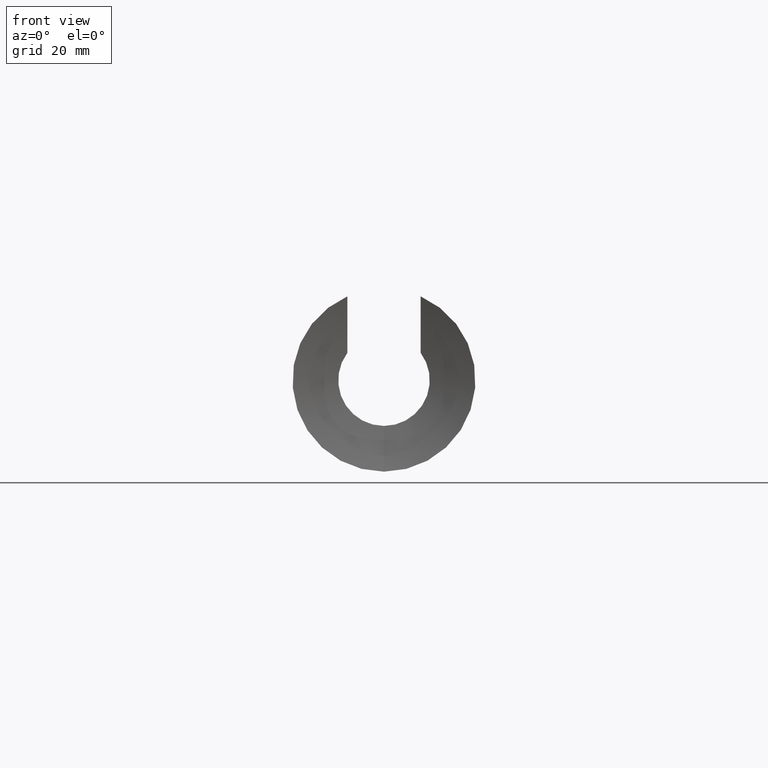
[diagram: clean part render]
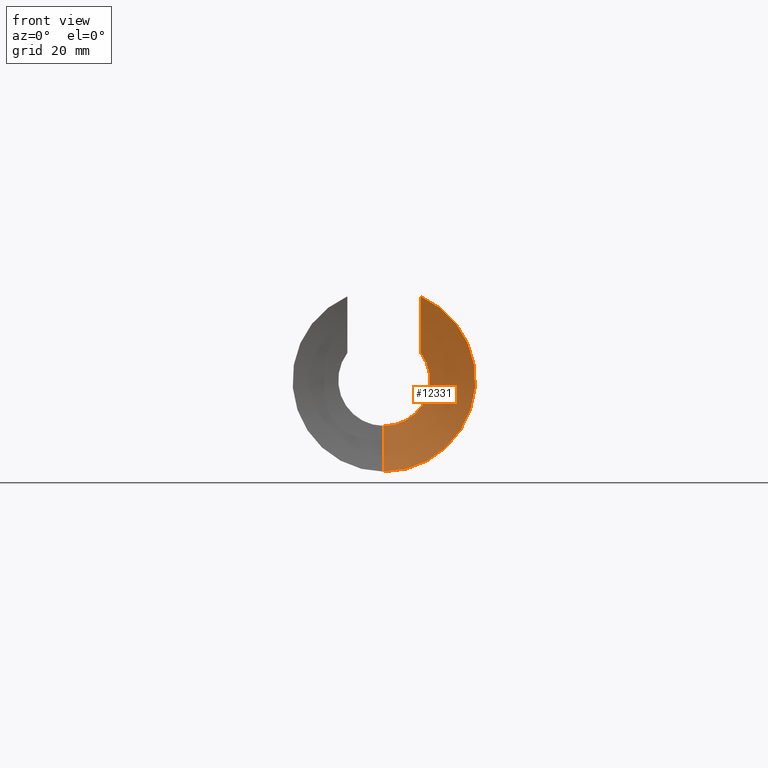
[diagram: same view with one face highlighted and labeled with its STEP entity id]
A machine part, front view. The second image highlights one B-rep face of the part: STEP entity #12331.
In plain terms, the highlighted spherical surface has radius 60 mm.
Its self-contained STEP definition (entity closure, byte-faithful):
#222 = ORIENTED_EDGE ( 'NONE', *, *, #12404, .T. ) ;
#645 = FACE_OUTER_BOUND ( 'NONE', #9578, .T. ) ;
#1732 = DIRECTION ( 'NONE',  ( -1.000000000000000000, 0.0000000000000000000, 0.0000000000000000000 ) ) ;
#1774 = CARTESIAN_POINT ( 'NONE',  ( 0.0000000000000000000, -56.56854249492380400, -3.463824224941972900E-015 ) ) ;
#1840 = CARTESIAN_POINT ( 'NONE',  ( 8.000000000000000000, 2.592255336072359000, 6.000000000000000900 ) ) ;
#1877 = CARTESIAN_POINT ( 'NONE',  ( 0.0000000000000000000, 0.0000000000000000000, 0.0000000000000000000 ) ) ;
#2066 = DIRECTION ( 'NONE',  ( 0.0000000000000000000, 0.0000000000000000000, -1.000000000000000000 ) ) ;
#2319 = DIRECTION ( 'NONE',  ( 0.0000000000000000000, 0.0000000000000000000, -1.000000000000000000 ) ) ;
#3527 = CIRCLE ( 'NONE', #6903, 60.00000000000000000 ) ;
#3811 = DIRECTION ( 'NONE',  ( 0.0000000000000000000, 1.000000000000000000, 0.0000000000000000000 ) ) ;
#3893 = DIRECTION ( 'NONE',  ( 0.0000000000000000000, 0.0000000000000000000, 1.000000000000000000 ) ) ;
#4130 = CIRCLE ( 'NONE', #6100, 10.00000000000000000 ) ;
#4275 = CARTESIAN_POINT ( 'NONE',  ( 0.0000000000000000000, 2.592255336072366100, -10.00000000000000000 ) ) ;
#4675 = SPHERICAL_SURFACE ( 'NONE', #5372, 60.00000000000000000 ) ;
#5035 = ORIENTED_EDGE ( 'NONE', *, *, #6522, .F. ) ;
#5372 = AXIS2_PLACEMENT_3D ( 'NONE', #8499, #11599, #2319 ) ;
#5619 = AXIS2_PLACEMENT_3D ( 'NONE', #1877, #3811, #11027 ) ;
#6100 = AXIS2_PLACEMENT_3D ( 'NONE', #11349, #9311, #2066 ) ;
#6380 = DIRECTION ( 'NONE',  ( 1.000000000000000000, 0.0000000000000000000, 0.0000000000000000000 ) ) ;
#6522 = EDGE_CURVE ( 'NONE', #10825, #11042, #11072, .T. ) ;
#6903 = AXIS2_PLACEMENT_3D ( 'NONE', #1774, #1732, #3893 ) ;
#7244 = VERTEX_POINT ( 'NONE', #4275 ) ;
#7544 = AXIS2_PLACEMENT_3D ( 'NONE', #9306, #6380, #11418 ) ;
#7566 = EDGE_CURVE ( 'NONE', #7244, #10825, #4130, .T. ) ;
#8499 = CARTESIAN_POINT ( 'NONE',  ( 0.0000000000000000000, -56.56854249492380400, -3.463824224941972900E-015 ) ) ;
#8634 = ORIENTED_EDGE ( 'NONE', *, *, #7566, .F. ) ;
#9306 = CARTESIAN_POINT ( 'NONE',  ( 8.000000000000000000, -56.56854249492380400, -3.463824224941972900E-015 ) ) ;
#9311 = DIRECTION ( 'NONE',  ( -0.0000000000000000000, -1.000000000000000000, -0.0000000000000000000 ) ) ;
#9578 = EDGE_LOOP ( 'NONE', ( #8634, #222, #12944, #5035 ) ) ;
#9820 = CIRCLE ( 'NONE', #5619, 19.99999999999999300 ) ;
#10625 = VERTEX_POINT ( 'NONE', #11634 ) ;
#10825 = VERTEX_POINT ( 'NONE', #1840 ) ;
#11027 = DIRECTION ( 'NONE',  ( 0.0000000000000000000, 0.0000000000000000000, 1.000000000000000000 ) ) ;
#11042 = VERTEX_POINT ( 'NONE', #12325 ) ;
#11072 = CIRCLE ( 'NONE', #7544, 59.46427498927402400 ) ;
#11349 = CARTESIAN_POINT ( 'NONE',  ( 0.0000000000000000000, 2.592255336072366100, 0.0000000000000000000 ) ) ;
#11418 = DIRECTION ( 'NONE',  ( 0.0000000000000000000, 0.0000000000000000000, -1.000000000000000000 ) ) ;
#11599 = DIRECTION ( 'NONE',  ( 1.000000000000000000, 0.0000000000000000000, 0.0000000000000000000 ) ) ;
#11634 = CARTESIAN_POINT ( 'NONE',  ( 0.0000000000000000000, 0.0000000000000000000, -19.99999999999999300 ) ) ;
#12325 = CARTESIAN_POINT ( 'NONE',  ( 7.999999999999998200, 0.0000000000000000000, 18.33030277982335200 ) ) ;
#12331 = ADVANCED_FACE ( 'NONE', ( #645 ), #4675, .F. ) ;
#12404 = EDGE_CURVE ( 'NONE', #7244, #10625, #3527, .T. ) ;
#12944 = ORIENTED_EDGE ( 'NONE', *, *, #13285, .F. ) ;
#13285 = EDGE_CURVE ( 'NONE', #11042, #10625, #9820, .T. ) ;